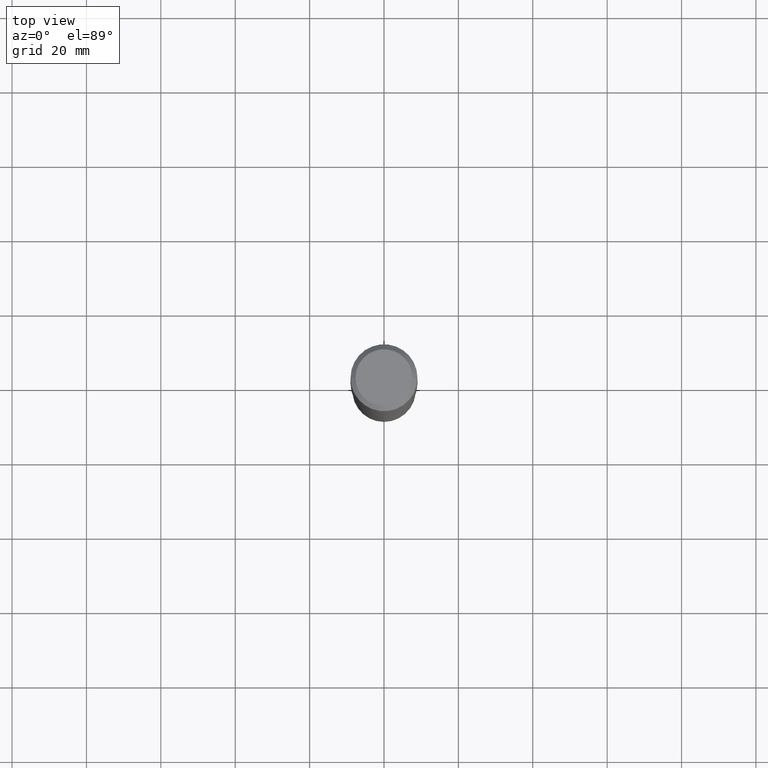
[diagram: clean part render]
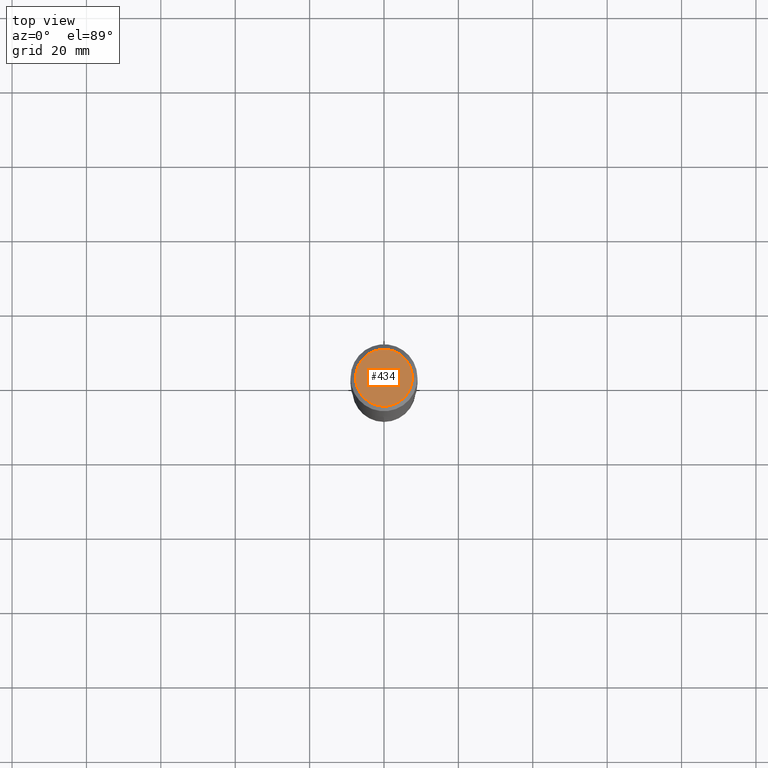
[diagram: same view with one face highlighted and labeled with its STEP entity id]
A machine part, top view. The second image highlights one B-rep face of the part: STEP entity #434.
In plain terms, the highlighted planar face has unit normal (0, -0, -1).
Its self-contained STEP definition (entity closure, byte-faithful):
#8 = CARTESIAN_POINT ( 'NONE',  ( -5.014852121625167883E-47, 7.159879756154481060E-33, 2.050671065172242981E-18 ) ) ;
#23 = DIRECTION ( 'NONE',  ( 1.000000000000000000, -6.982962677686266711E-15, 4.876239486148337140E-29 ) ) ;
#36 = CARTESIAN_POINT ( 'NONE',  ( -1.002970424325033577E-46, 1.431975951230896212E-32, 4.101342130344485961E-18 ) ) ;
#41 = DIRECTION ( 'NONE',  ( 1.000000000000000000, -6.982962677686266711E-15, 4.876239486148337140E-29 ) ) ;
#53 = AXIS2_PLACEMENT_3D ( 'NONE', #8, #411, #148 ) ;
#56 = ORIENTED_EDGE ( 'NONE', *, *, #247, .T. ) ;
#72 = CIRCLE ( 'NONE', #416, 0.3011975000000000069 ) ;
#136 = CARTESIAN_POINT ( 'NONE',  ( 0.3011975000000000069, -2.341481636528497322E-15, 4.101342130360026675E-18 ) ) ;
#148 = DIRECTION ( 'NONE',  ( -1.000000000000000000, 6.982962677686265922E-15, -4.876176775795935793E-29 ) ) ;
#191 = FACE_OUTER_BOUND ( 'NONE', #259, .T. ) ;
#208 = CARTESIAN_POINT ( 'NONE',  ( -1.002970424325033577E-46, 1.431975951230896212E-32, 4.101342130344485961E-18 ) ) ;
#247 = EDGE_CURVE ( 'NONE', #275, #327, #72, .T. ) ;
#259 = EDGE_LOOP ( 'NONE', ( #56, #370 ) ) ;
#275 = VERTEX_POINT ( 'NONE', #466 ) ;
#285 = CIRCLE ( 'NONE', #302, 0.3011975000000000069 ) ;
#302 = AXIS2_PLACEMENT_3D ( 'NONE', #36, #330, #41 ) ;
#327 = VERTEX_POINT ( 'NONE', #136 ) ;
#330 = DIRECTION ( 'NONE',  ( -2.445468806185136597E-29, 3.491481338843145583E-15, 1.000000000000000000 ) ) ;
#356 = DIRECTION ( 'NONE',  ( -2.445468806185136597E-29, 3.491481338843145583E-15, 1.000000000000000000 ) ) ;
#370 = ORIENTED_EDGE ( 'NONE', *, *, #384, .T. ) ;
#384 = EDGE_CURVE ( 'NONE', #327, #275, #285, .T. ) ;
#411 = DIRECTION ( 'NONE',  ( 2.438088387897960049E-29, -3.491481338843145188E-15, -1.000000000000000000 ) ) ;
#416 = AXIS2_PLACEMENT_3D ( 'NONE', #208, #356, #23 ) ;
#434 = ADVANCED_FACE ( 'NONE', ( #191 ), #467, .F. ) ;
#466 = CARTESIAN_POINT ( 'NONE',  ( -0.3011975000000000069, 2.196041382043838255E-15, 4.101342130329452923E-18 ) ) ;
#467 = PLANE ( 'NONE',  #53 ) ;